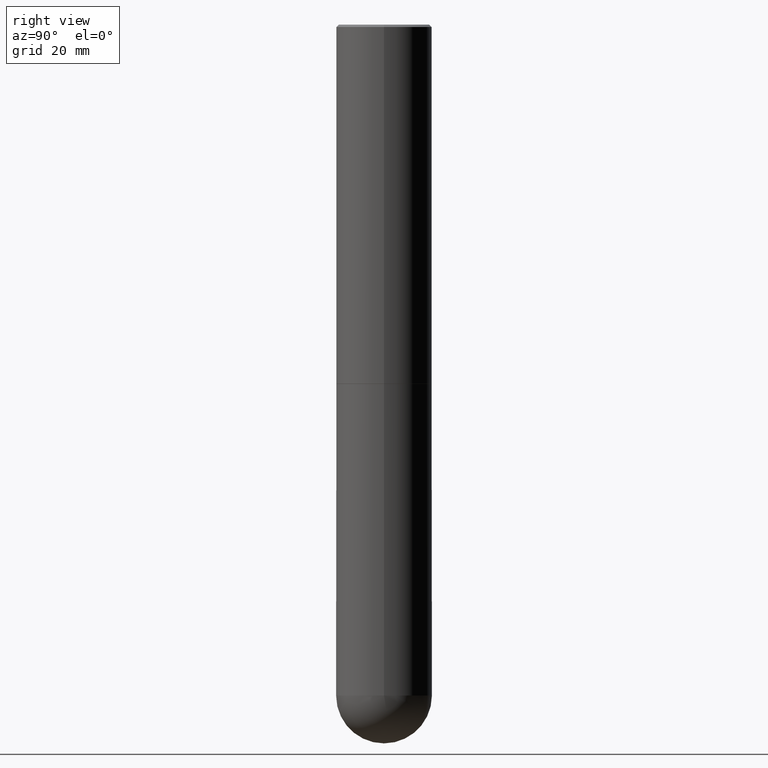
[diagram: clean part render]
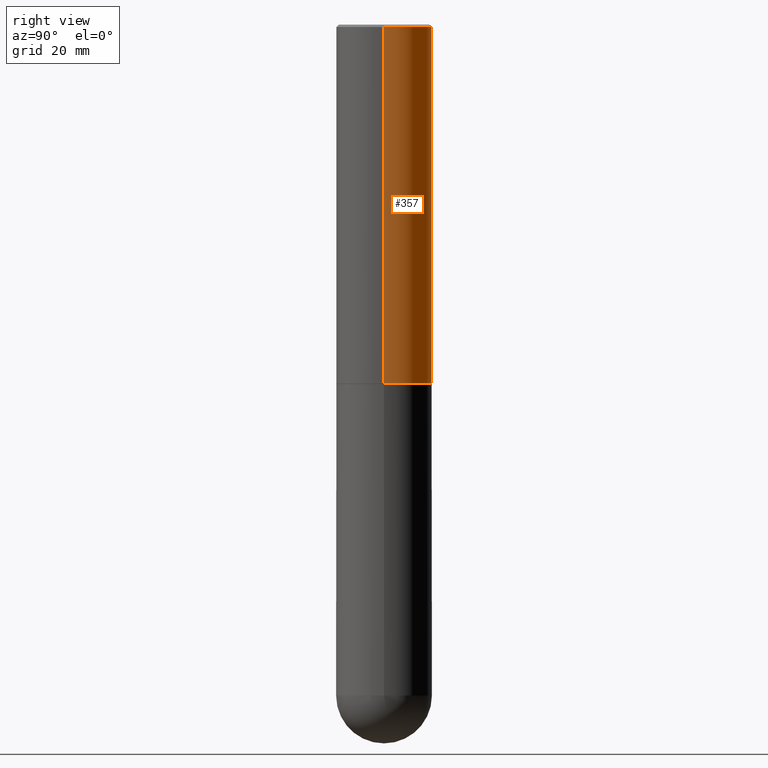
[diagram: same view with one face highlighted and labeled with its STEP entity id]
A machine part, right view. The second image highlights one B-rep face of the part: STEP entity #357.
In plain terms, the highlighted cylindrical surface (partial cylindrical patch) has radius 10 mm, axis along (-0, 0, 1).
Its self-contained STEP definition (entity closure, byte-faithful):
#3 = DIRECTION ( 'NONE',  ( -2.445468806185136597E-29, 3.491481338843145583E-15, 1.000000000000000000 ) ) ;
#4 = VECTOR ( 'NONE', #260, 39.37007874015748143 ) ;
#16 = DIRECTION ( 'NONE',  ( 1.000000000000000000, -6.982962677686266711E-15, 4.876176775795935793E-29 ) ) ;
#18 = DIRECTION ( 'NONE',  ( 1.000000000000000000, -6.982962677686269077E-15, 0.000000000000000000 ) ) ;
#19 = VERTEX_POINT ( 'NONE', #120 ) ;
#23 = VERTEX_POINT ( 'NONE', #182 ) ;
#39 = CIRCLE ( 'NONE', #168, 0.3937000000000000499 ) ;
#43 = DIRECTION ( 'NONE',  ( -2.445468806185136597E-29, 3.491481338843145583E-15, 1.000000000000000000 ) ) ;
#47 = VERTEX_POINT ( 'NONE', #365 ) ;
#67 = CARTESIAN_POINT ( 'NONE',  ( -0.3937000000000003830, -2.390410796632568923E-15, -2.951700000000000212 ) ) ;
#82 = CARTESIAN_POINT ( 'NONE',  ( 0.000000000000000000, 0.000000000000000000, 0.000000000000000000 ) ) ;
#91 = LINE ( 'NONE', #325, #210 ) ;
#100 = EDGE_CURVE ( 'NONE', #47, #23, #376, .T. ) ;
#110 = ORIENTED_EDGE ( 'NONE', *, *, #100, .F. ) ;
#117 = EDGE_LOOP ( 'NONE', ( #121, #308, #339, #110 ) ) ;
#120 = CARTESIAN_POINT ( 'NONE',  ( -0.3937000000000000499, 2.679362779428219918E-15, -0.02000000000000009062 ) ) ;
#121 = ORIENTED_EDGE ( 'NONE', *, *, #374, .T. ) ;
#134 = DIRECTION ( 'NONE',  ( 1.000000000000000000, -6.982962677686265922E-15, 0.000000000000000000 ) ) ;
#137 = EDGE_CURVE ( 'NONE', #251, #19, #91, .T. ) ;
#168 = AXIS2_PLACEMENT_3D ( 'NONE', #386, #3, #134 ) ;
#182 = CARTESIAN_POINT ( 'NONE',  ( 0.3937000000000000499, -2.770807688499515734E-15, -0.02000000000000009062 ) ) ;
#189 = DIRECTION ( 'NONE',  ( -2.445468806185136877E-29, 3.491481338843145188E-15, 1.000000000000000000 ) ) ;
#210 = VECTOR ( 'NONE', #189, 39.37007874015748143 ) ;
#230 = EDGE_CURVE ( 'NONE', #23, #19, #39, .T. ) ;
#241 = DIRECTION ( 'NONE',  ( -2.445468806185136597E-29, 3.491481338843145583E-15, 1.000000000000000000 ) ) ;
#250 = CYLINDRICAL_SURFACE ( 'NONE', #382, 0.3937000000000001609 ) ;
#251 = VERTEX_POINT ( 'NONE', #67 ) ;
#260 = DIRECTION ( 'NONE',  ( -2.445468806185136877E-29, 3.491481338843145188E-15, 1.000000000000000000 ) ) ;
#267 = CIRCLE ( 'NONE', #296, 0.3937000000000002720 ) ;
#296 = AXIS2_PLACEMENT_3D ( 'NONE', #368, #241, #18 ) ;
#308 = ORIENTED_EDGE ( 'NONE', *, *, #137, .T. ) ;
#323 = CARTESIAN_POINT ( 'NONE',  ( 0.3937000000000001609, -2.749192406205084400E-15, 1.919750796630860732E-29 ) ) ;
#325 = CARTESIAN_POINT ( 'NONE',  ( -0.3937000000000001609, 2.797406750687515575E-15, -1.936584745033357296E-29 ) ) ;
#337 = FACE_OUTER_BOUND ( 'NONE', #117, .T. ) ;
#339 = ORIENTED_EDGE ( 'NONE', *, *, #230, .F. ) ;
#357 = ADVANCED_FACE ( 'NONE', ( #337 ), #250, .T. ) ;
#365 = CARTESIAN_POINT ( 'NONE',  ( 0.3937000000000002720, -1.305499787406839996E-14, -2.951700000000000212 ) ) ;
#368 = CARTESIAN_POINT ( 'NONE',  ( 7.218290275216666916E-29, -1.030580546786331359E-14, -2.951700000000000212 ) ) ;
#374 = EDGE_CURVE ( 'NONE', #47, #251, #267, .T. ) ;
#376 = LINE ( 'NONE', #323, #4 ) ;
#382 = AXIS2_PLACEMENT_3D ( 'NONE', #82, #43, #16 ) ;
#386 = CARTESIAN_POINT ( 'NONE',  ( 4.890937612370295054E-31, -6.982962677686322424E-17, -0.02000000000000009062 ) ) ;